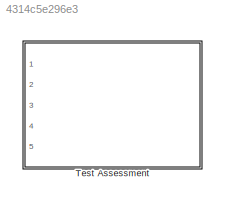
MODEL slx_4314c5e296e3
KIND library
CONFIG AbsTol = auto
CONFIG FixedStep = auto
CONFIG MaxStep = auto
CONFIG MinStep = auto
CONFIG RelTol = 1e-3
CONFIG SampleTimeConstraint = Unconstrained
CONFIG Solver = ode45
CONFIG SolverMode = Auto
CONFIG SolverName = ode45
CONFIG StartTime = 0.0
CONFIG StopTime = 10.0
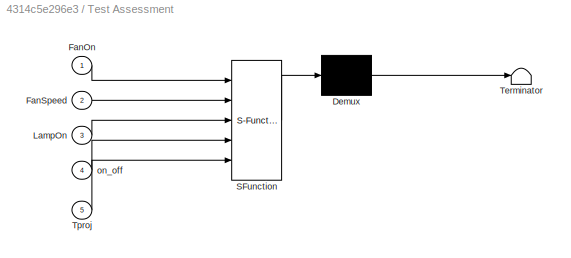
BLOCK [SubSystem] Test Assessment
  ErrorFcn = Stateflow.Translate.translate
  PermitHierarchicalResolution = ExplicitOnly
  Ports = [5]
  RequestExecContextInheritance = off
  SFBlockType = State Transition Table
  TreatAsAtomicUnit = on
  Variant = off
BLOCK [Demux] Test Assessment/ Demux 
  Outputs = 1
  Ports = [1, 1]
BLOCK [S-Function] Test Assessment/ SFunction 
  EnableBusSupport = on
  FunctionName = sf_sfun
  PortCounts = [5 1]
  Ports = [5, 1]
  SFunctionDeploymentMode = off
  Tag = Stateflow S-Function sltestProjectorCtrlAssessLibrary 1
BLOCK [Terminator] Test Assessment/ Terminator 
BLOCK [Inport] Test Assessment/FanOn
  IconDisplay = Port number
BLOCK [Inport] Test Assessment/FanSpeed
  IconDisplay = Port number
  Port = 2
BLOCK [Inport] Test Assessment/LampOn
  IconDisplay = Port number
  Port = 3
BLOCK [Inport] Test Assessment/Tproj
  IconDisplay = Port number
  Port = 5
BLOCK [Inport] Test Assessment/on_off
  IconDisplay = Port number
  Port = 4
CHART Test Assessment states=5 transitions=18
  STATE_LABEL "GlobalAssess\nverify(~LampOn == true || FanOn == true,...\n    'Simulink:verify_lamp_implies_fan',...\n    'Fan must be on if lamp is on');"
  STATE_LABEL "OverheatCondition\nverify(LampOn == false &&...\n    FanOn == true && FanSpeed == High,...\n    'Simulink:verify_overheat',...\n    'In overheat condition lamp must be off and fan high');"
  STATE_LABEL "HighTempCondition\nverify(FanOn == true && FanSpeed == High,...\n    'Simulink:verify_high_temp',...\n    'In high temp condition fan must be high');"
  STATE_LABEL "NormalCondition\nverify(duration(FanSpeed == High) <= 10,...\n    'Simulink:verify_fan_normal',...\n    'In normal condition fan must return to normal within 10 s');"
  STATE_LABEL 'Else'
  STATE_LABEL '[Tproj > 65]'
  STATE_LABEL '[~in(OverheatCondition)]'
  STATE_LABEL '[Tproj > 58]'
  STATE_LABEL '[~in(HighTempCondition)]'
  STATE_LABEL '[(Tproj < 58 && LampOn == true)]'
  STATE_LABEL '[~in(NormalCondition)]'
  STATE_LABEL '[~in(Else)]'
  STATE_LABEL "OverheatCondition\nverify(LampOn == false &&...\n    FanOn == true && FanSpeed == High,...\n    'Simulink:verify_overheat',...\n    'In overheat condition lamp must be off and fan high');"
  STATE_LABEL "HighTempCondition\nverify(FanOn == true && FanSpeed == High,...\n    'Simulink:verify_high_temp',...\n    'In high temp condition fan must be high');"
  STATE_LABEL "NormalCondition\nverify(duration(FanSpeed == High) <= 10,...\n    'Simulink:verify_fan_normal',...\n    'In normal condition fan must return to normal within 10 s');"
  STATE_LABEL 'Else'
